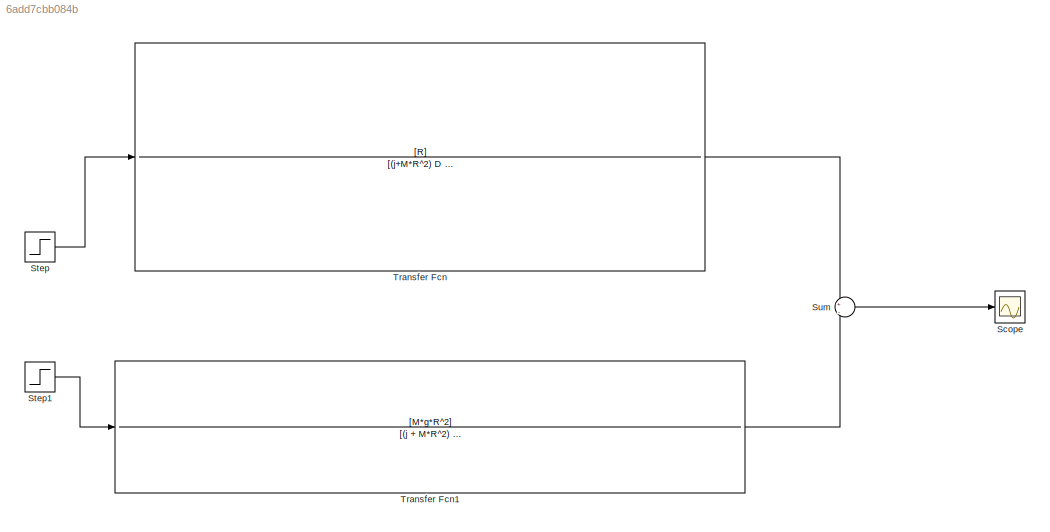
MODEL slx_6add7cbb084b
KIND model
CONFIG AbsTol = auto
CONFIG EnableMultiTasking = off
CONFIG FixedStep = auto
CONFIG MaxStep = auto
CONFIG MinStep = auto
CONFIG RelTol = 1e-3
CONFIG SampleTimeConstraint = Unconstrained
CONFIG SolverName = VariableStepAuto
CONFIG StartTime = 0.0
CONFIG StopTime = 50.0
BLOCK [Scope] Scope
  Floating = off
  NumInputPorts = 1
  Ports = [1]
  ScopeSpecificationString = Simulink.scopes.TimeScopeBlockCfg('CurrentConfiguration', extmgr.ConfigurationSet(extmgr.Configuration('Core','General UI',true),extmgr.Configuration('Core','Source UI',true),extmgr.Configuration('Sources','WiredSimulink',true),extmgr.Configuration('Visuals','Time Domain',true,'SerializedDisplays',{struct('MinYLimReal','-0.12511','MaxYLimReal','1.126','YLabelReal','','MinYLimMag','0.00000','MaxYLi...<+1344ch>
BLOCK [Step] Step
  After = 10
  SampleTime = 0
  Time = 0
BLOCK [Step] Step1
  SampleTime = 0
  Time = 0
BLOCK [Sum] Sum
  Inputs = +|-
  Ports = [2, 1]
BLOCK [TransferFcn] Transfer Fcn
  Denominator = [(j+M*R^2) D K*R^2]
  Numerator = [R]
BLOCK [TransferFcn] Transfer Fcn1
  Denominator = [(j + M*R^2) D K*R^2]
  Numerator = [M*g*R^2]
LINE Step1:1 -> Transfer Fcn1:1
LINE Step:1 -> Transfer Fcn:1
LINE Sum:1 -> Scope:1
LINE Transfer Fcn1:1 -> Sum:2
LINE Transfer Fcn:1 -> Sum:1
